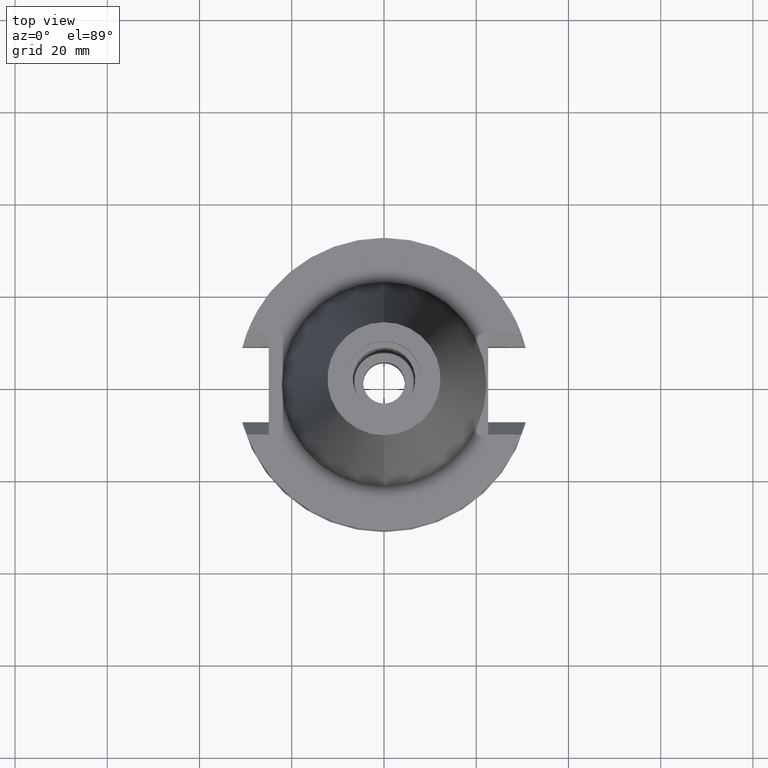
[diagram: clean part render]
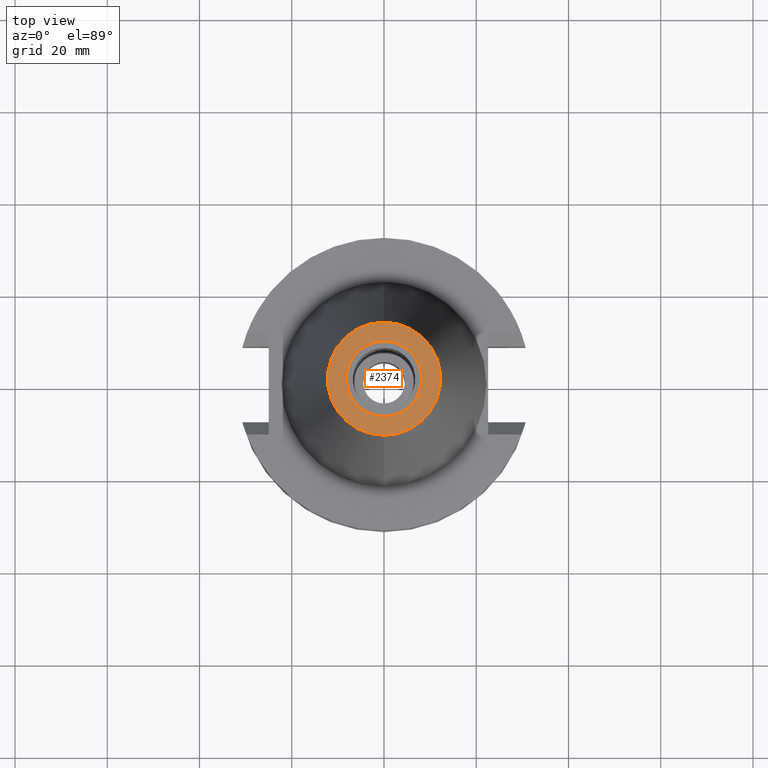
[diagram: same view with one face highlighted and labeled with its STEP entity id]
A machine part, top view. The second image highlights one B-rep face of the part: STEP entity #2374.
In plain terms, the highlighted planar face has unit normal (0, 0, 1).
Its self-contained STEP definition (entity closure, byte-faithful):
#1180=CARTESIAN_POINT('',(0.E0,0.E0,6.825E1));
#1181=DIRECTION('',(0.E0,0.E0,-1.E0));
#1182=DIRECTION('',(0.E0,-1.E0,0.E0));
#1183=AXIS2_PLACEMENT_3D('',#1180,#1181,#1182);
#1188=CARTESIAN_POINT('',(0.E0,0.E0,6.825E1));
#1189=DIRECTION('',(0.E0,0.E0,-1.E0));
#1190=DIRECTION('',(0.E0,1.E0,0.E0));
#1191=AXIS2_PLACEMENT_3D('',#1188,#1189,#1190);
#1196=CARTESIAN_POINT('',(0.E0,0.E0,6.825E1));
#1197=DIRECTION('',(0.E0,0.E0,1.E0));
#1198=DIRECTION('',(0.E0,-1.E0,0.E0));
#1199=AXIS2_PLACEMENT_3D('',#1196,#1197,#1198);
#1204=CARTESIAN_POINT('',(0.E0,0.E0,6.825E1));
#1205=DIRECTION('',(0.E0,0.E0,1.E0));
#1206=DIRECTION('',(0.E0,1.E0,0.E0));
#1207=AXIS2_PLACEMENT_3D('',#1204,#1205,#1206);
#1212=CARTESIAN_POINT('',(0.E0,1.227186888070E1,6.825E1));
#1214=VERTEX_POINT('',#1212);
#1216=CARTESIAN_POINT('',(0.E0,-1.227186888070E1,6.825E1));
#1217=VERTEX_POINT('',#1216);
#1328=CARTESIAN_POINT('',(0.E0,8.16E0,6.825E1));
#1329=VERTEX_POINT('',#1328);
#1330=CARTESIAN_POINT('',(0.E0,-8.16E0,6.825E1));
#1331=VERTEX_POINT('',#1330);
#2361=CARTESIAN_POINT('',(0.E0,0.E0,6.825E1));
#2362=DIRECTION('',(0.E0,0.E0,1.E0));
#2363=DIRECTION('',(0.E0,1.E0,0.E0));
#2364=AXIS2_PLACEMENT_3D('',#2361,#2362,#2363);
#2365=PLANE('',#2364);
#2366=ORIENTED_EDGE('',*,*,#1424,.T.);
#2367=ORIENTED_EDGE('',*,*,#1442,.T.);
#2368=EDGE_LOOP('',(#2366,#2367));
#2369=FACE_OUTER_BOUND('',#2368,.F.);
#2370=ORIENTED_EDGE('',*,*,#2354,.T.);
#2371=ORIENTED_EDGE('',*,*,#2343,.T.);
#2372=EDGE_LOOP('',(#2370,#2371));
#2373=FACE_BOUND('',#2372,.F.);
#1184=CIRCLE('',#1183,1.227186888070E1);
#1192=CIRCLE('',#1191,1.227186888070E1);
#1200=CIRCLE('',#1199,8.16E0);
#1208=CIRCLE('',#1207,8.16E0);
#1424=EDGE_CURVE('',#1217,#1214,#1184,.T.);
#1442=EDGE_CURVE('',#1214,#1217,#1192,.T.);
#2343=EDGE_CURVE('',#1329,#1331,#1208,.T.);
#2354=EDGE_CURVE('',#1331,#1329,#1200,.T.);
#2374=ADVANCED_FACE('',(#2369,#2373),#2365,.T.);